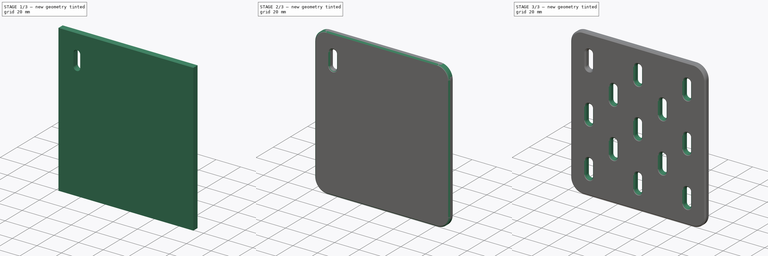
[diagram: build sequence overview — one tinted view per stage of 3, left to right]
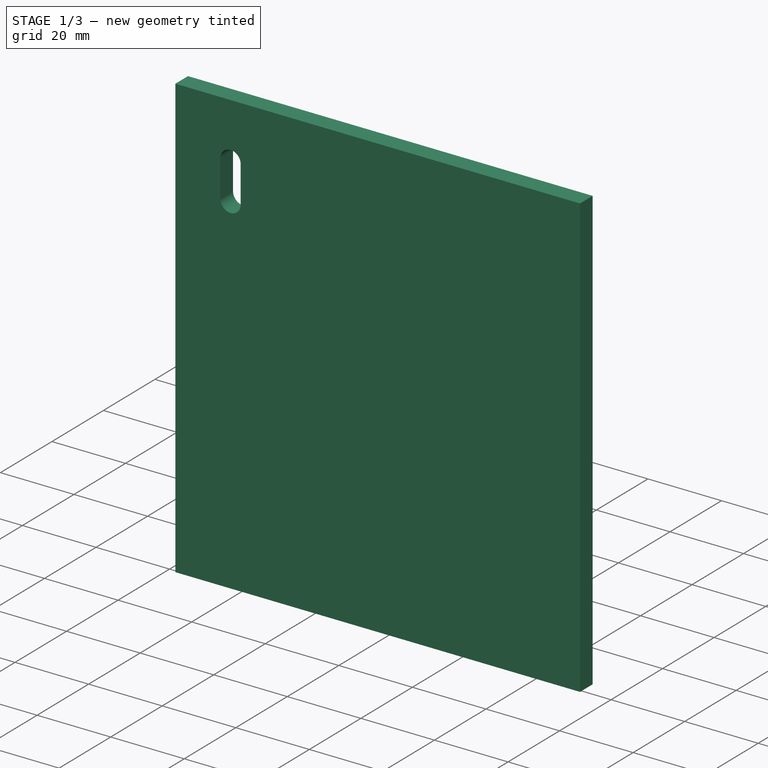
[diagram: stage 1 of 3 — iso view after this stage's code; geometry added in this stage tinted green]
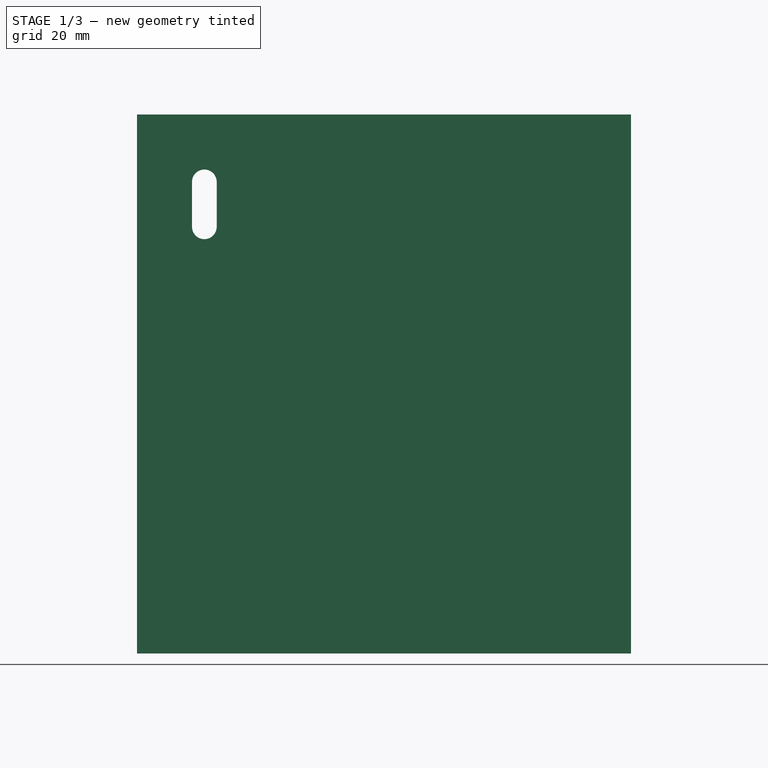
[diagram: stage 1 of 3 — front view after this stage's code; geometry added in this stage tinted green]
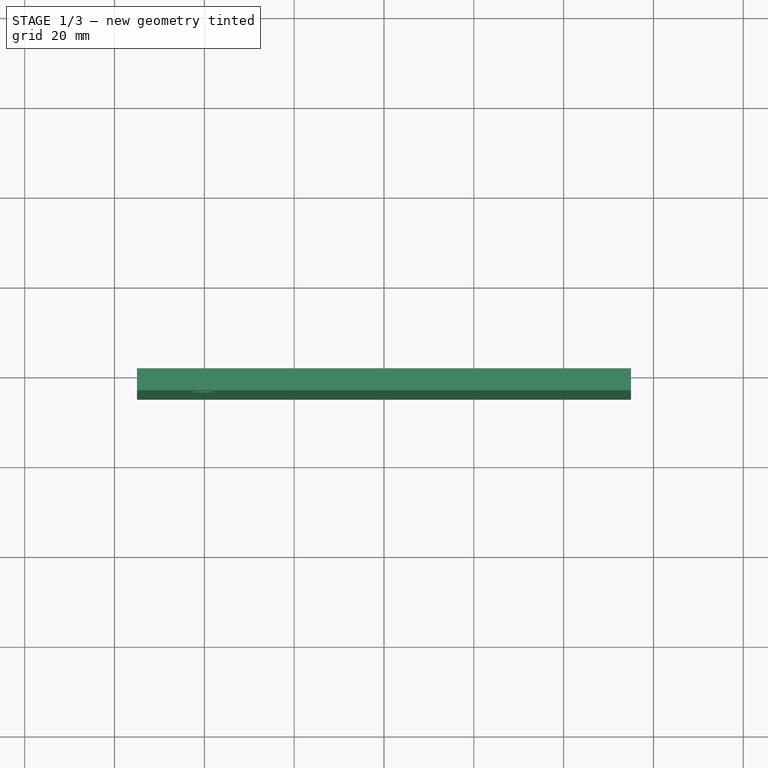
[diagram: stage 1 of 3 — top view after this stage's code; geometry added in this stage tinted green]
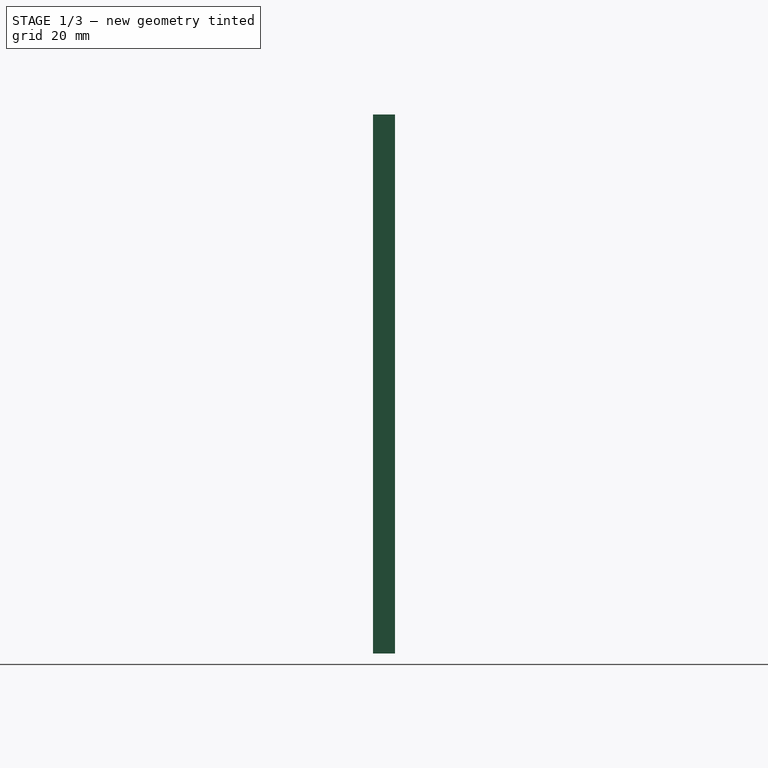
[diagram: stage 1 of 3 — right view after this stage's code; geometry added in this stage tinted green]
FCSTD DOCUMENT  (FreeCAD 1.0R39109 (Git))
Label: ParametricPegBoard
License: All rights reserved
LicenseURL: http://en.wikipedia.org/wiki/All_rights_reserved
objects: PartDesign::LinearPattern×5, PartDesign::Chamfer×2, PartDesign::MultiTransform×2, Sketcher::SketchObject×1, PartDesign::AdditiveBox×1, PartDesign::Pocket×1, PartDesign::Fillet×1, PartDesign::Line×1, PartDesign::Body×1
note: 33 computed .brp shape members not serialized (recipe doc carries the construction recipe); baked Part::Feature solids carry a one-line shape summary decoded from their .brp

FEATURE [Sketcher::SketchObject] Sketch  label="PegHoleSketchSketch"
  ArcFitTolerance = 1e-06
  AttachmentSupport = -> [XZ_Plane]
  FullyConstrained = true
  MakeInternals = false
  MapMode = 5
  Placement = pos=(0,0,0) rot=(1,0,0;1.5708rad)
  sketch-geometry (4):
    g0: ArcOfCircle CenterX=2e-16 CenterY=5 CenterZ=0 NormalX=0 NormalY=0 NormalZ=1 AngleXU=0 Radius=2.75 StartAngle=-1.8e-15 EndAngle=3.14159
    g1: ArcOfCircle CenterX=-2e-16 CenterY=-5 CenterZ=0 NormalX=0 NormalY=0 NormalZ=1 AngleXU=0 Radius=2.75 StartAngle=3.14159 EndAngle=6.28319
    g2: LineSegment StartX=2.75 StartY=5 StartZ=0 EndX=2.75 EndY=-5 EndZ=0
    g3: LineSegment StartX=-2.75 StartY=5 StartZ=0 EndX=-2.75 EndY=-5 EndZ=0
  constraints (9):
    c: Tangent(g0,g2) = 1.5708
    c: Tangent(g0,g3) = -1.5708
    c: Tangent(g1,g2) = 1.5708
    c: Tangent(g1,g3) = -1.5708
    c: Equal(g0,g1)
    c: Vertical(g3)
    c: Symmetric(g0,g1,g-1)
    c: DistanceX(g0,g0) = 5.5
    c: DistanceY(g1,g0) = 10
FEATURE [PartDesign::AdditiveBox] Box  label="Board"
  AttacherType = Attacher::AttachEngine3D
  AttachmentOffset = pos=(-15,-100,0) rot=(0,0,1;0rad)
  AttachmentSupport = -> [XZ_Plane]
  Dimensions_SizeH = 3
  Dimensions_SizeV = 3
  Height = 4.9
  Length = 110
  MapMode = 5
  Placement = pos=(-15,-2.22e-14,-100) rot=(1,0,0;1.5708rad)
  Suppressed = false
  Width = 120
  expr: .AttachmentOffset.Base.y = -(Dimensions_SizeV - 0.5) * 40 mm
  expr: Length = Dimensions_SizeH * 40 mm - 10 mm
  expr: Width = Dimensions_SizeV * 40 mm - 0 mm
FEATURE [PartDesign::Pocket] Pocket  label="Peg hole"
  BaseFeature = -> Box
  Direction = (0,1,-2e-16)
  Length = 5
  Length2 = 5
  Placement = pos=(-15,-2.22e-14,-100) rot=(1,0,0;1.5708rad)
  Profile = -> Sketch
  ReferenceAxis = -> Sketch [N_Axis]
  Reversed = true
  Suppressed = false
  Type = 1
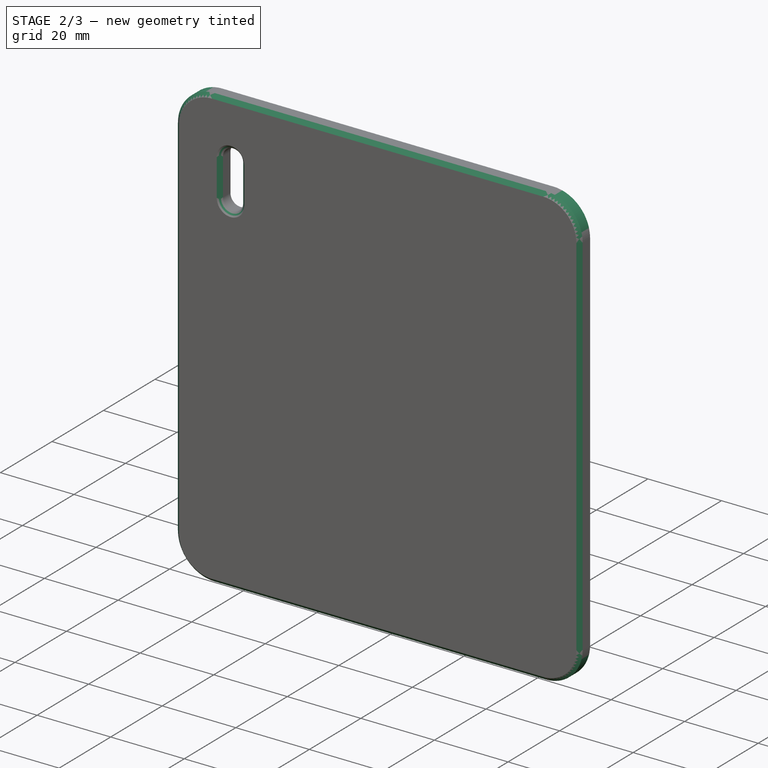
[diagram: stage 2 of 3 — iso view after this stage's code; geometry added in this stage tinted green]
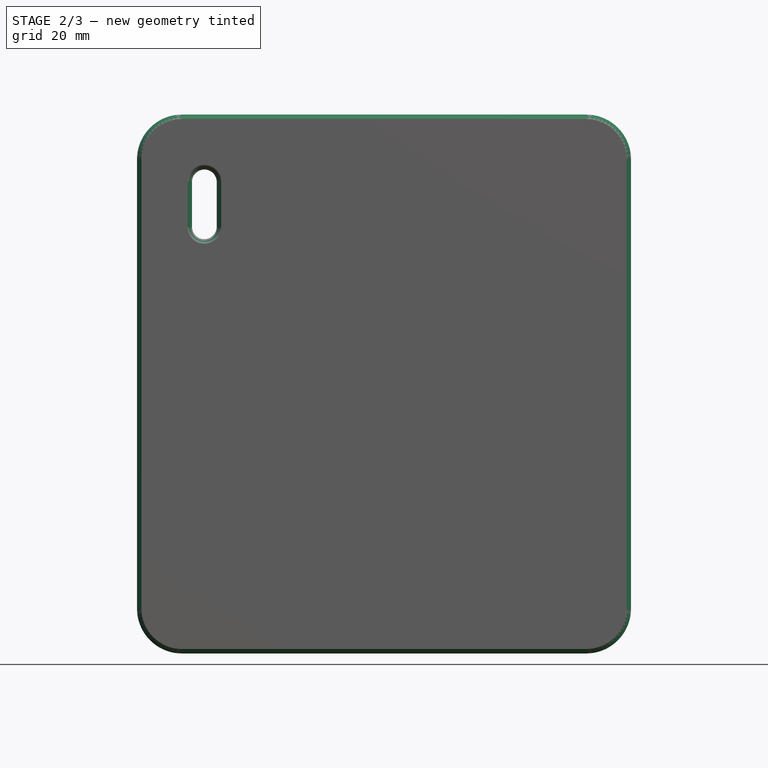
[diagram: stage 2 of 3 — front view after this stage's code; geometry added in this stage tinted green]
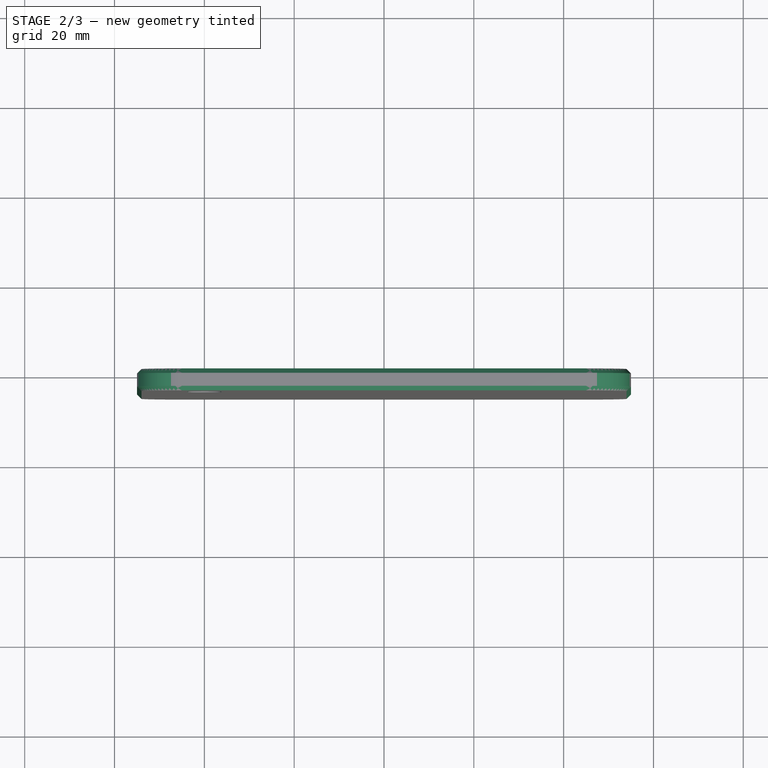
[diagram: stage 2 of 3 — top view after this stage's code; geometry added in this stage tinted green]
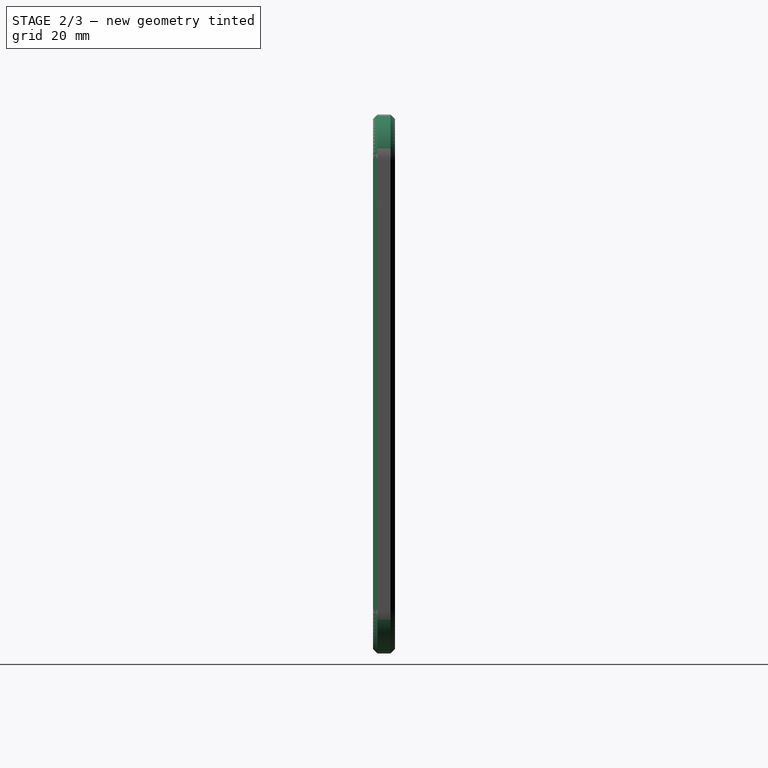
[diagram: stage 2 of 3 — right view after this stage's code; geometry added in this stage tinted green]
FEATURE [PartDesign::Chamfer] Chamfer  label="Peg hole chamfer"
  Angle = 45
  Base = -> Pocket [Edge10,Edge18]
  BaseFeature = -> Pocket
  ChamferType = 0
  FlipDirection = false
  Placement = pos=(-15,-2.22e-14,-100) rot=(1,0,0;1.5708rad)
  Size = 1
  Size2 = 1
  SupportTransform = false
  Suppressed = false
  UseAllEdges = false
FEATURE [PartDesign::Fillet] Fillet  label="Corner fillet"
  Base = -> Chamfer [Edge18,Edge21,Edge23,Edge17]
  BaseFeature = -> Chamfer
  Placement = pos=(-15,-2.22e-14,-100) rot=(1,0,0;1.5708rad)
  Radius = 10
  SupportTransform = false
  Suppressed = false
  UseAllEdges = false
FEATURE [PartDesign::Chamfer] Chamfer001  label="Perimeter chamfer"
  Angle = 45
  Base = -> Fillet [Edge5,Edge22]
  BaseFeature = -> Fillet
  ChamferType = 0
  FlipDirection = false
  Placement = pos=(-15,-2.22e-14,-100) rot=(1,0,0;1.5708rad)
  Size = 1
  Size2 = 1
  SupportTransform = false
  Suppressed = false
  UseAllEdges = false
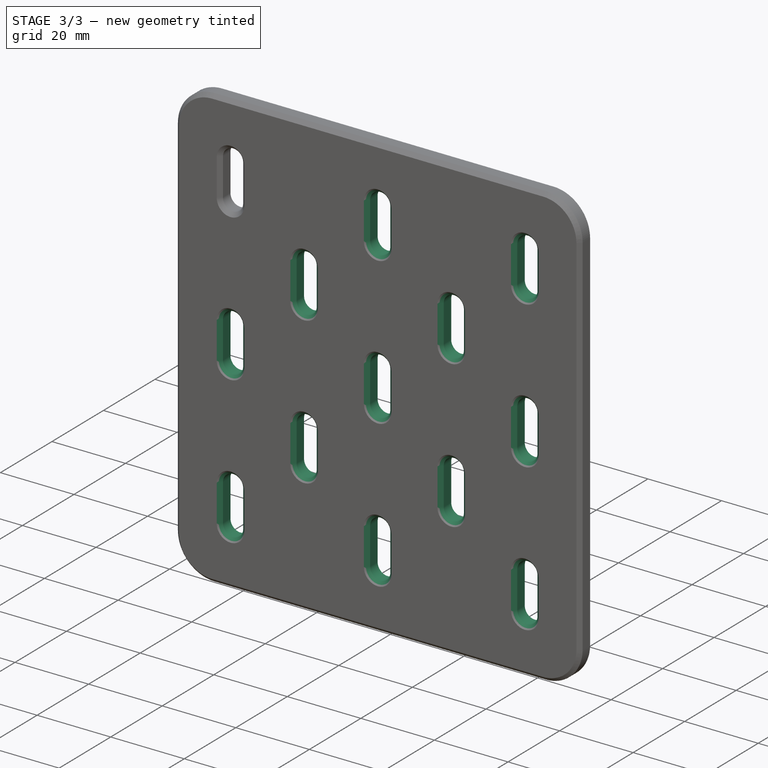
[diagram: stage 3 of 3 — iso view after this stage's code; geometry added in this stage tinted green]
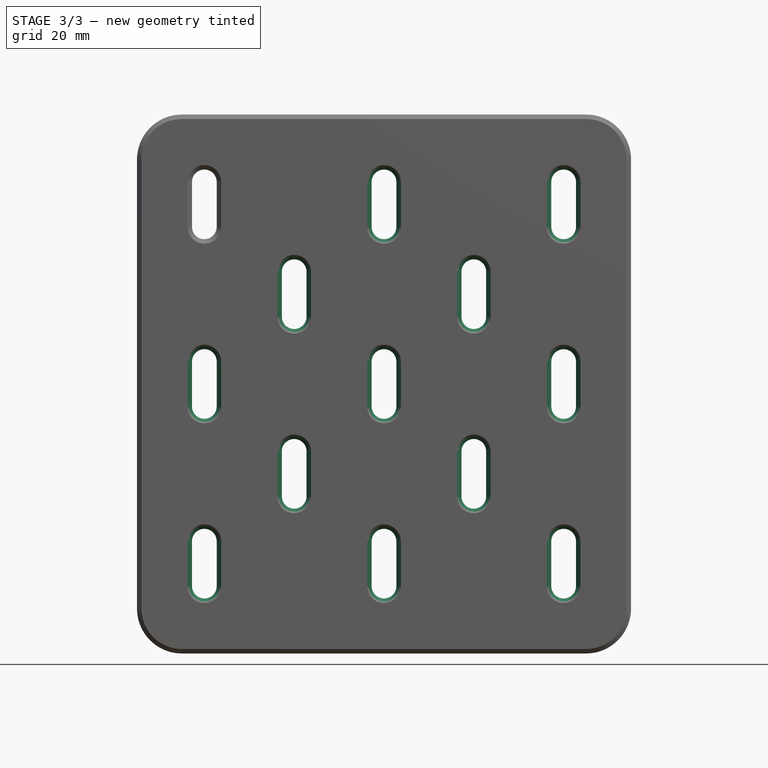
[diagram: stage 3 of 3 — front view after this stage's code; geometry added in this stage tinted green]
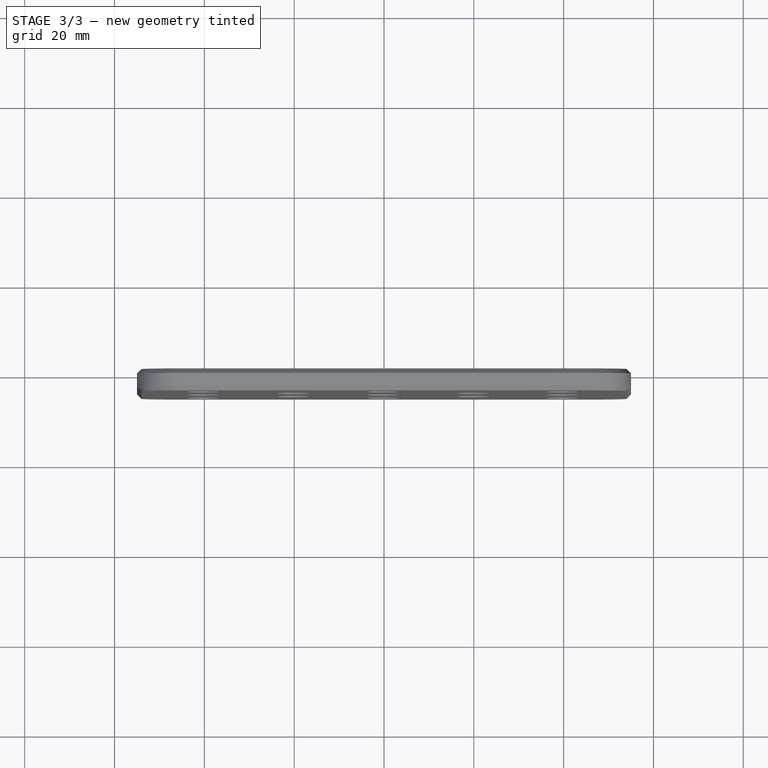
[diagram: stage 3 of 3 — top view after this stage's code; geometry added in this stage tinted green]
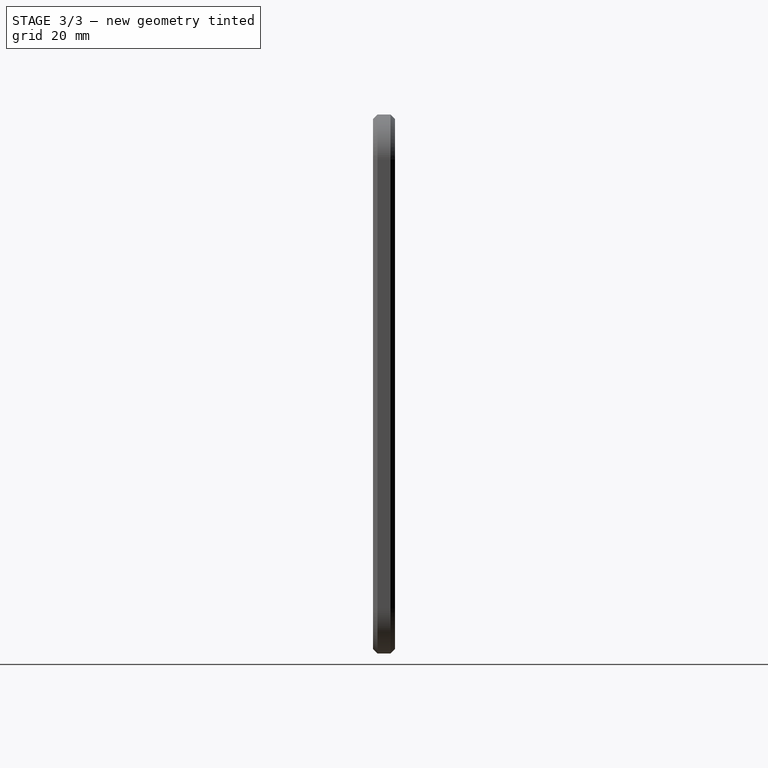
[diagram: stage 3 of 3 — right view after this stage's code; geometry added in this stage tinted green]
FEATURE [PartDesign::LinearPattern] LinearPattern  label="Horizontal repeat"
  Direction = -> Sketch [H_Axis]
  Length = 80
  Mode = 1
  Occurrences = 3
  Offset = 40
  Placement = pos=(-15,-2.22e-14,-100) rot=(1,0,0;1.5708rad)
  Suppressed = false
  TransformMode = 0
  expr: Occurrences = <<Board>>.Dimensions_SizeH
FEATURE [PartDesign::LinearPattern] LinearPattern001  label="Vertical repeat"
  Direction = -> Sketch [V_Axis]
  Length = 80
  Mode = 1
  Occurrences = 3
  Offset = 40
  Placement = pos=(-15,-2.22e-14,-100) rot=(1,0,0;1.5708rad)
  Reversed = true
  Suppressed = false
  TransformMode = 0
  expr: Occurrences = <<Board>>.Dimensions_SizeV
FEATURE [PartDesign::MultiTransform] MultiTransform  label="Peg hole grid"
  BaseFeature = -> Chamfer001
  Originals = -> [Pocket,Chamfer]
  Placement = pos=(-15,-2.22e-14,-100) rot=(1,0,0;1.5708rad)
  Suppressed = false
  TransformMode = 0
  Transformations = -> [LinearPattern,LinearPattern001]
FEATURE [PartDesign::Line] DatumLine  label="45 degree datum line"
  AttacherType = Attacher::AttachEngineLine
  AttachmentOffset = pos=(0,0,0) rot=(1,0,0;0.785398rad)
  AttachmentSupport = -> [X_Axis]
  Length = 20
  MapMode = 16
  Placement = pos=(0,0,0) rot=(0.678598,0.678598,0.281085;2.59356rad)
  ResizeMode = 0
FEATURE [PartDesign::LinearPattern] LinearPattern002  label="45 degree copy"
  Direction = -> DatumLine
  Length = 28.2843
  Mode = 0
  Occurrences = 2
  Offset = 28.2843
  Placement = pos=(-15,-2.22e-14,-100) rot=(1,0,0;1.5708rad)
  Suppressed = false
  TransformMode = 0
  expr: Length = sqrt(2) * 20
FEATURE [PartDesign::LinearPattern] LinearPattern003  label="Secondary horizontal repeat"
  Direction = -> Sketch [H_Axis]
  Length = 40
  Mode = 1
  Occurrences = 2
  Offset = 40
  Placement = pos=(-15,-2.22e-14,-100) rot=(1,0,0;1.5708rad)
  Suppressed = false
  TransformMode = 0
  expr: Occurrences = <<Board>>.Dimensions_SizeH - 1
FEATURE [PartDesign::LinearPattern] LinearPattern004  label="Secondary vertical repeat"
  Direction = -> Sketch [V_Axis]
  Length = 40
  Mode = 1
  Occurrences = 2
  Offset = 40
  Placement = pos=(-15,-2.22e-14,-100) rot=(1,0,0;1.5708rad)
  Reversed = true
  Suppressed = false
  TransformMode = 0
  expr: Occurrences = <<Board>>.Dimensions_SizeV - 1
FEATURE [PartDesign::MultiTransform] MultiTransform001  label="Secondary peg hole grid"
  BaseFeature = -> MultiTransform
  Originals = -> [Pocket,Chamfer]
  Placement = pos=(-15,-2.22e-14,-100) rot=(1,0,0;1.5708rad)
  Suppressed = false
  TransformMode = 0
  Transformations = -> [LinearPattern002,LinearPattern003,LinearPattern004]
FEATURE [PartDesign::Body] Body  label="PegBoard"
  AllowCompound = false
  Group = -> [Sketch,Box,Pocket,Chamfer,Fillet,Chamfer001,DatumLine,MultiTransform,LinearPattern,LinearPattern001,MultiTransform001,LinearPattern002,LinearPattern003,LinearPattern004]
  Origin = -> Origin
  Tip = -> MultiTransform001
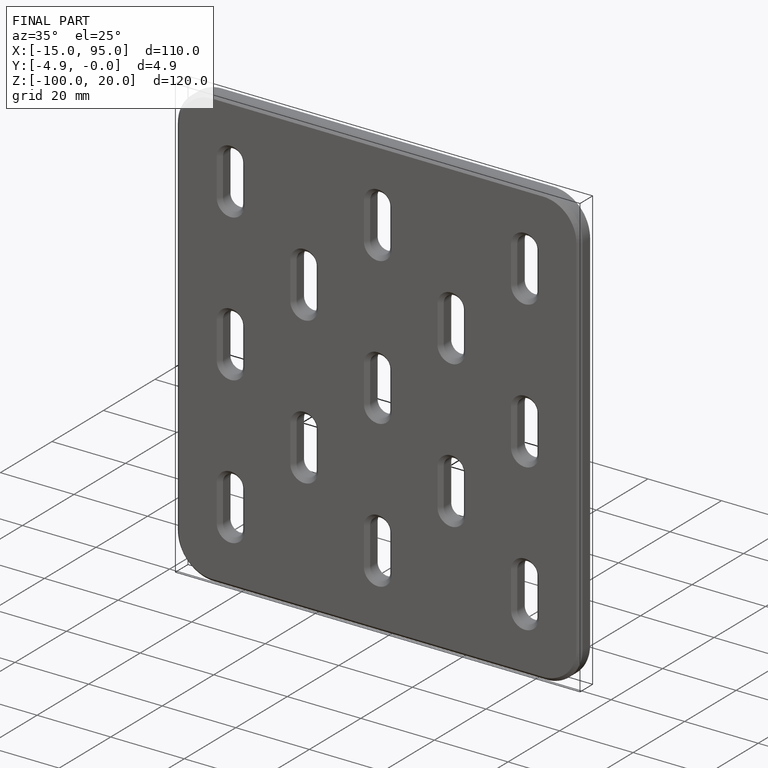
[diagram: finished part — iso view with bounding-box wireframe]
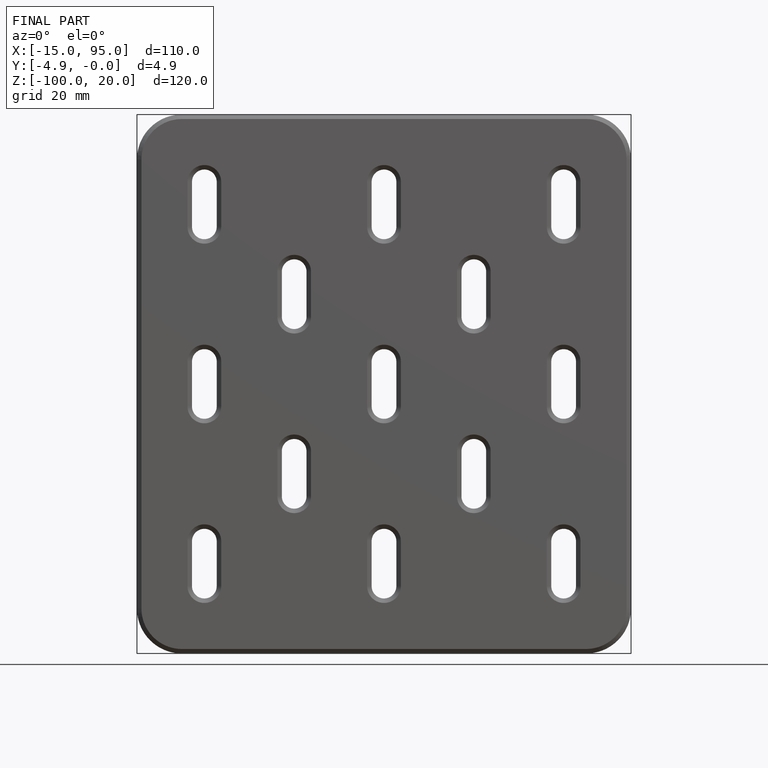
[diagram: finished part — front view with bounding-box wireframe]
